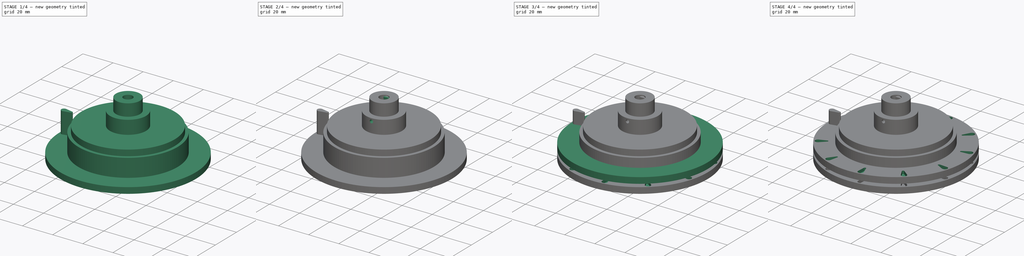
[diagram: build sequence overview — one tinted view per stage of 4, left to right]
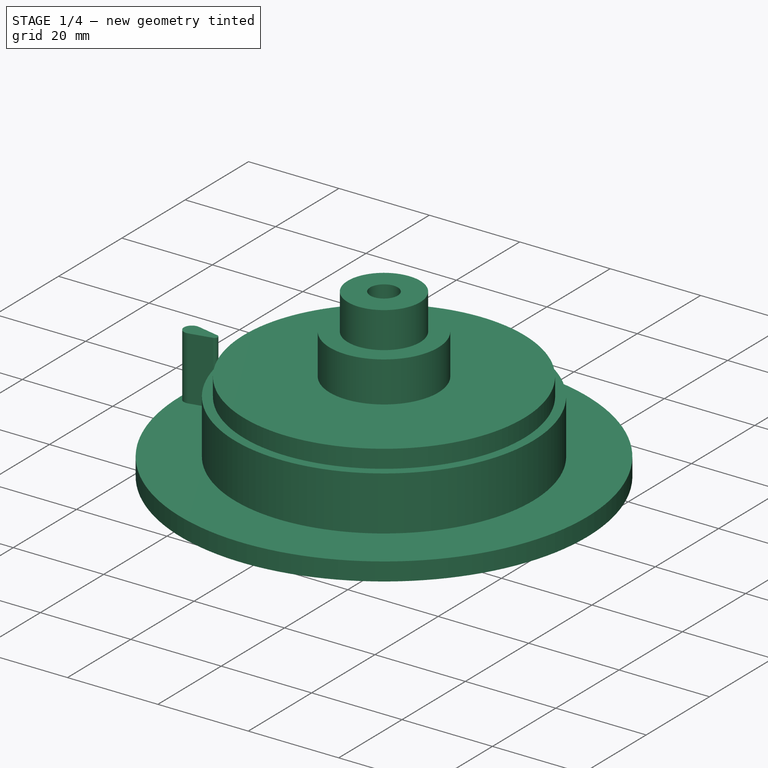
[diagram: stage 1 of 4 — iso view after this stage's code; geometry added in this stage tinted green]
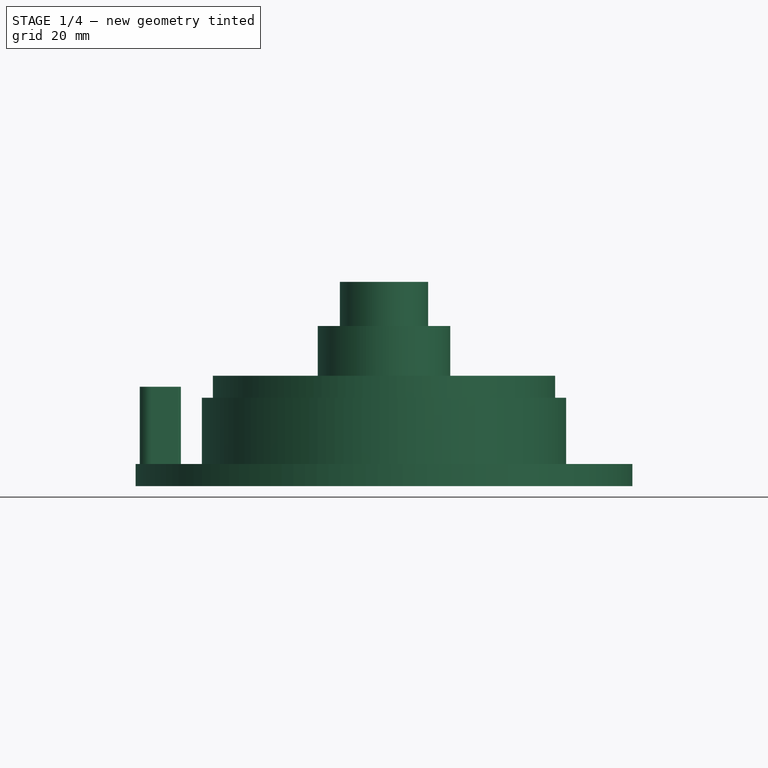
[diagram: stage 1 of 4 — front view after this stage's code; geometry added in this stage tinted green]
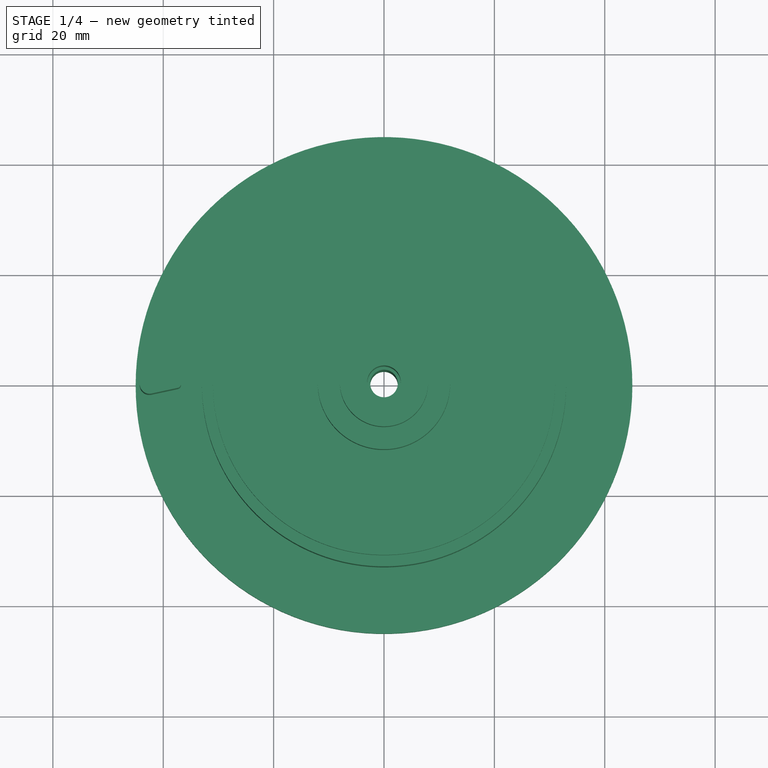
[diagram: stage 1 of 4 — top view after this stage's code; geometry added in this stage tinted green]
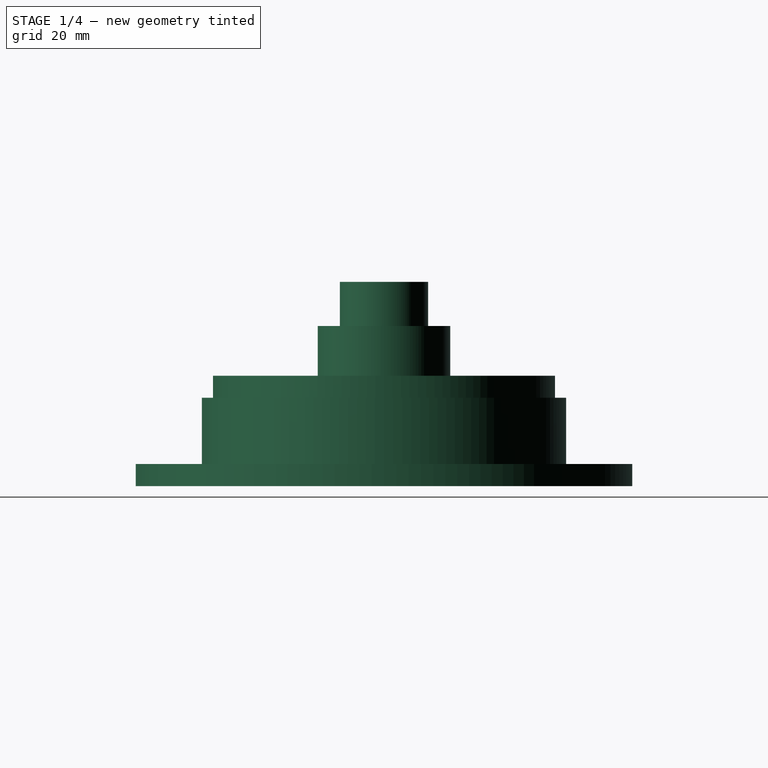
[diagram: stage 1 of 4 — right view after this stage's code; geometry added in this stage tinted green]
FCSTD DOCUMENT  (FreeCAD 0.20R27319 (Git))
Label: sprocket
License: All rights reserved
LicenseURL: http://en.wikipedia.org/wiki/All_rights_reserved
objects: Sketcher::SketchObject×7, PartDesign::Pad×3, PartDesign::Pocket×3, PartDesign::Body×3, App::MeasureDistance×2, PartDesign::PolarPattern×2, PartDesign::Revolution×1
note: 26 computed .brp shape members not serialized (recipe doc carries the construction recipe); baked Part::Feature solids carry a one-line shape summary decoded from their .brp

FEATURE [Sketcher::SketchObject] Sketch006
  FullyConstrained = true
  MapMode = 5
  Placement = pos=(0,0,0) rot=(1,0,0;1.5708rad)
  Support = -> [XZ_Plane005]
  sketch-geometry (17):
    g0: LineSegment StartX=-8 StartY=27 StartZ=0 EndX=-3.05 EndY=27 EndZ=0
    g1: GeomPoint X=8 Y=27 Z=0
    g2: GeomPoint X=3.05 Y=14 Z=0
    g3: LineSegment StartX=-2.5 StartY=-10 StartZ=0 EndX=-2.5 EndY=14 EndZ=0
    g4: LineSegment StartX=-2.5 StartY=14 StartZ=0 EndX=-3.05 EndY=14 EndZ=0
    g5: LineSegment StartX=-3.05 StartY=14 StartZ=0 EndX=-3.05 EndY=27 EndZ=0
    g6: LineSegment StartX=-8 StartY=19 StartZ=0 EndX=-12 EndY=19 EndZ=0
    g7: LineSegment StartX=-45 StartY=-10 StartZ=0 EndX=-2.5 EndY=-10 EndZ=0
    g8: LineSegment StartX=-8 StartY=19 StartZ=0 EndX=-8 EndY=27 EndZ=0
    g9: LineSegment StartX=-45 StartY=-6 StartZ=0 EndX=-45 EndY=-10 EndZ=0
    g10: LineSegment StartX=-33 StartY=-6 StartZ=0 EndX=-45 EndY=-6 EndZ=0
    g11: LineSegment StartX=-33 StartY=6 StartZ=0 EndX=-33 EndY=-6 EndZ=0
    g12: LineSegment StartX=-31 StartY=6 StartZ=0 EndX=-33 EndY=6 EndZ=0
    g13: LineSegment StartX=-31 StartY=10 StartZ=0 EndX=-31 EndY=6 EndZ=0
    g14: LineSegment StartX=-12 StartY=19 StartZ=0 EndX=-12 EndY=10 EndZ=0
    g15: LineSegment StartX=-12 StartY=10 StartZ=0 EndX=-31 EndY=10 EndZ=0
    g16: GeomPoint X=31 Y=6 Z=0
  constraints (45):
    c: Coincident(g8,g0)
    c: Horizontal(g0)
    c: Symmetric(g8,g1,g-2)
    c: DistanceX(g8,g1) = 16
    c: Vertical(g3)
    c: Coincident(g3,g4)
    c: Horizontal(g4)
    c: Coincident(g4,g5)
    c: Coincident(g5,g0)
    c: Vertical(g5)
    c: Symmetric(g2,g4,g-2)
    c: DistanceX(g4,g2) = 6.1
    c: DistanceY(g5,g5) = 13
    c: Coincident(g6,g14)
    c: Coincident(g9,g7)
    c: Horizontal(g6)
    c: Horizontal(g7)
    c: Coincident(g8,g6)
    c: DistanceY(g8,g8) = 8
    c: DistanceX(g3) = -2.5
    c: Coincident(g7,g3)
    c: Vertical(g8)
    c: Coincident(g10,g9)
    c: Vertical(g9)
    c: Coincident(g11,g10)
    c: Coincident(g12,g11)
    c: Horizontal(g10)
    c: Coincident(g13,g12)
    c: Horizontal(g12)
    c: DistanceY(g9,g9) = 4
    c: Coincident(g15,g13)
    c: Vertical(g13)
    c: Coincident(g14,g15)
    c: Vertical(g14)
    c: Horizontal(g15)
    c: Equal(g9,g13)
    c: DistanceY(g14,g14) = 9
    c: DistanceX(g12,g12) = 2
    c: DistanceY(g11,g11) = 12
    c: Symmetric(g16,g12,g-2)
    c: DistanceX(g12,g16) = 62  'base_diam'
    c: DistanceX(g10,g10) = 12
    c: Symmetric(g10,g11,g-1)
    c: DistanceY(g0) = 27  'height'
    c: DistanceX(g6,g6) = 4
FEATURE [PartDesign::Revolution] Revolution001
  Angle = 360
  Axis = (0,-2e-16,1)
  Base = (0,0,0)
  Placement = pos=(0,0,0) rot=(1,0,0;1.5708rad)
  Profile = -> Sketch006
  ReferenceAxis = -> Sketch006 [V_Axis]
FEATURE [PartDesign::Body] Body005  label="wheel-one_rim"
  Group = -> [Sketch006,Revolution001,Sketch013,Sketch,Pad,Pocket003,Sketch014,Pocket004,PolarPattern]
  Origin = -> Origin005
  Tip = -> PolarPattern
FEATURE [Sketcher::SketchObject] Sketch017
  FullyConstrained = true
  MapMode = 5
  Support = -> [XY_Plane006]
  expr: Constraints[1] = Sketch014.Constraints[1]
  expr: Constraints[2] = Sketch014.Constraints[2]
  expr: Constraints[4] = Sketch014.Constraints[4]
  expr: Constraints[9] = Sketch014.Constraints[9]
  sketch-geometry (4):
    g0: ArcOfCircle CenterX=-42.5 CenterY=0 CenterZ=0 NormalX=0 NormalY=0 NormalZ=1 AngleXU=0 Radius=1.75 StartAngle=1.35922 EndAngle=4.92396
    g1: ArcOfCircle CenterX=-37.5 CenterY=0 CenterZ=0 NormalX=0 NormalY=0 NormalZ=1 AngleXU=0 Radius=0.7 StartAngle=4.92396 EndAngle=7.64241
    g2: LineSegment StartX=-37.353 StartY=0.684391 StartZ=0 EndX=-42.1325 EndY=1.71098 EndZ=0
    g3: LineSegment StartX=-37.353 StartY=-0.684391 StartZ=0 EndX=-42.1325 EndY=-1.71098 EndZ=0
  constraints (10):
    c: PointOnObject(g0,g-1)
    c: Radius(g0) = 1.75
    c: DistanceX(g0) = -42.5
    c: PointOnObject(g1,g-1)
    c: Radius(g1) = 0.7
    c: Tangent(g3,g0) = 1.5708
    c: Tangent(g3,g1) = 1.5708
    c: Tangent(g2,g1) = -1.5708
    c: Tangent(g2,g0) = -1.5708
    c: DistanceX(g0,g1) = 5
FEATURE [PartDesign::Pad] Pad003
  Direction = (0,0,1)
  Length = 16
  Length2 = 10
  Midplane = true
  Profile = -> Sketch017
  ReferenceAxis = -> Sketch017 [N_Axis]
  Type = 0
FEATURE [PartDesign::Body] Body006  label="tooth"
  Group = -> [Sketch017,Pad003]
  Origin = -> Origin006
  Placement = pos=(-12,0,0) rot=(0,0,1;0rad)
  Tip = -> Pad003
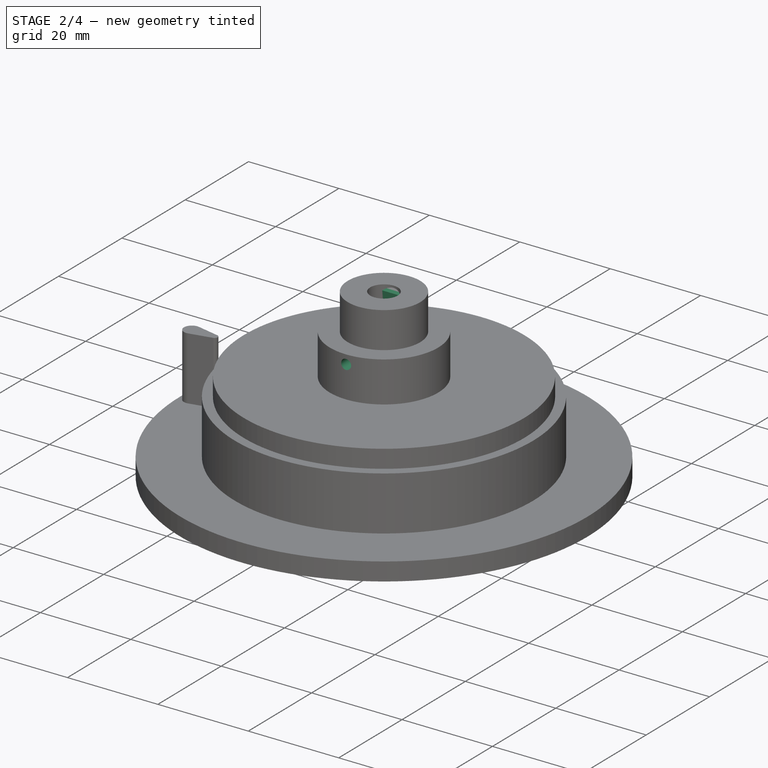
[diagram: stage 2 of 4 — iso view after this stage's code; geometry added in this stage tinted green]
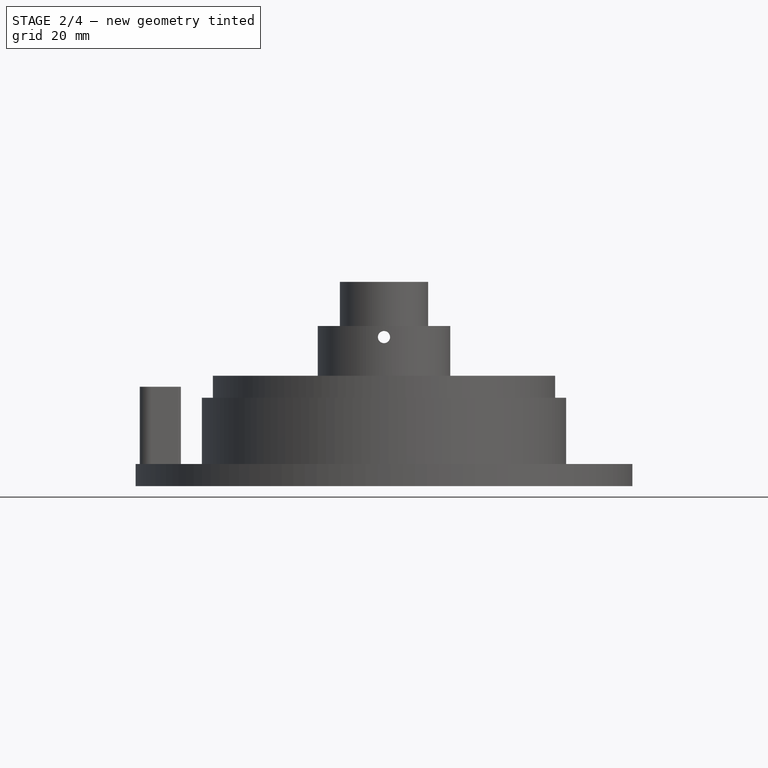
[diagram: stage 2 of 4 — front view after this stage's code; geometry added in this stage tinted green]
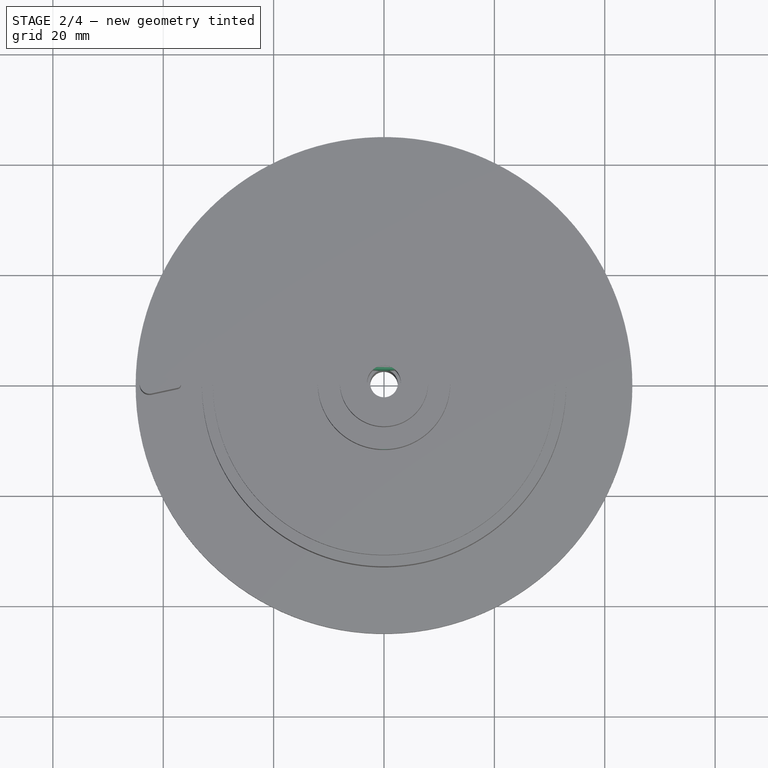
[diagram: stage 2 of 4 — top view after this stage's code; geometry added in this stage tinted green]
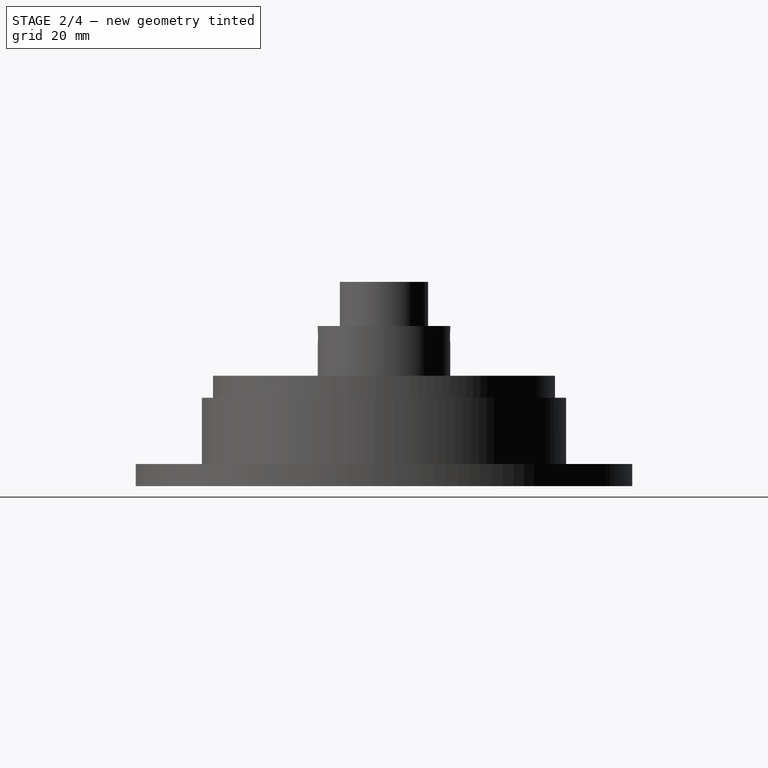
[diagram: stage 2 of 4 — right view after this stage's code; geometry added in this stage tinted green]
FEATURE [Sketcher::SketchObject] Sketch013
  FullyConstrained = true
  MapMode = 5
  Placement = pos=(0,0,0) rot=(1,0,0;1.5708rad)
  Support = -> [XZ_Plane005]
  expr: Constraints[2] = Sketch006.Constraints.height - 10mm
  sketch-geometry (1):
    g0: Circle CenterX=0 CenterY=17 CenterZ=0 NormalX=0 NormalY=0 NormalZ=1 AngleXU=0 Radius=1.1
  constraints (3):
    c: Diameter(g0) = 2.2
    c: PointOnObject(g0,g-2)
    c: DistanceY(g0) = 17
FEATURE [Sketcher::SketchObject] Sketch
  FullyConstrained = true
  MapMode = 5
  Placement = pos=(0,0,0) rot=(0.57735,0.57735,0.57735;2.0944rad)
  Support = -> [YZ_Plane005]
  expr: Constraints[10] = Sketch006.Constraints.height - 1.2mm
  sketch-geometry (4):
    g0: LineSegment StartX=2.3 StartY=14.8 StartZ=0 EndX=2.3 EndY=25.8 EndZ=0
    g1: LineSegment StartX=2.3 StartY=25.8 StartZ=0 EndX=3.3 EndY=26.8 EndZ=0
    g2: LineSegment StartX=3.3 StartY=26.8 StartZ=0 EndX=3.3 EndY=14.8 EndZ=0
    g3: LineSegment StartX=3.3 StartY=14.8 StartZ=0 EndX=2.3 EndY=14.8 EndZ=0
  constraints (12):
    c: Vertical(g0)
    c: Coincident(g0,g1)
    c: Coincident(g1,g2)
    c: Vertical(g2)
    c: Coincident(g2,g3)
    c: Coincident(g3,g0)
    c: Angle(g1) = 0.785398
    c: DistanceX(g0) = 2.3
    c: DistanceX(g3,g3) = 1
    c: Horizontal(g3)
    c: DistanceY(g0) = 25.8
    c: DistanceY(g0,g0) = 11
FEATURE [PartDesign::Pad] Pad
  BaseFeature = -> Revolution001
  Direction = (1,-2e-16,3e-16)
  Length = 6
  Length2 = 10
  Midplane = true
  Placement = pos=(0,0,0) rot=(1,0,0;1.5708rad)
  Profile = -> Sketch
  ReferenceAxis = -> Sketch [N_Axis]
  Type = 0
FEATURE [PartDesign::Pocket] Pocket003
  BaseFeature = -> Pad
  Direction = (0,1,2e-16)
  Length = 5
  Length2 = 100
  Midplane = true
  Placement = pos=(0,0,0) rot=(1,0,0;1.5708rad)
  Profile = -> Sketch013
  Type = 1
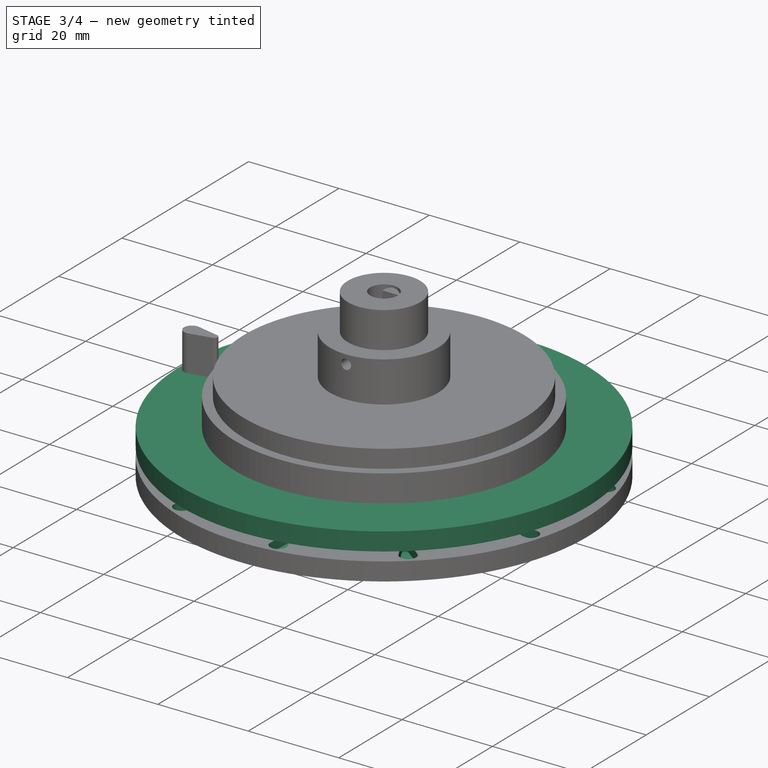
[diagram: stage 3 of 4 — iso view after this stage's code; geometry added in this stage tinted green]
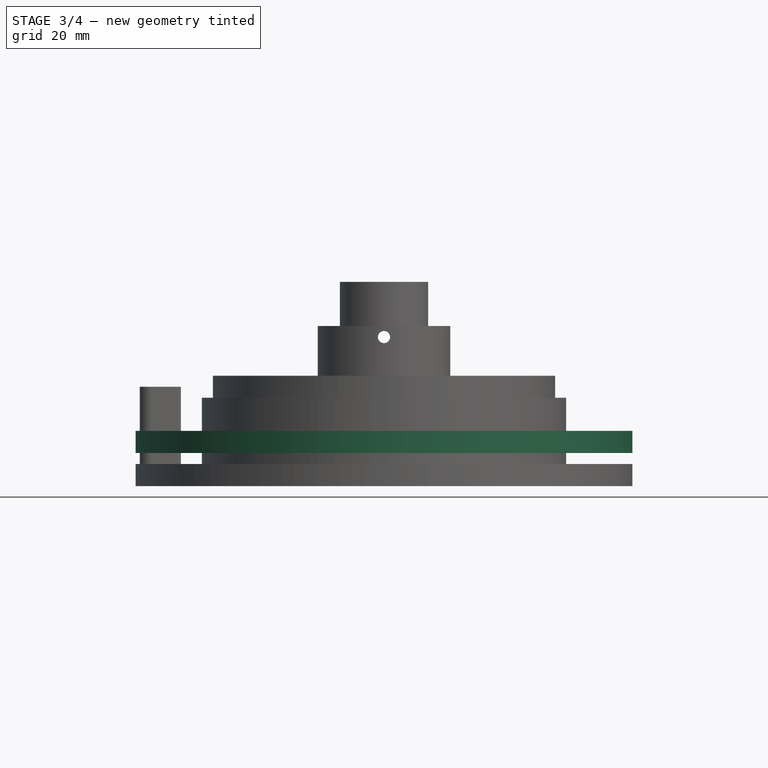
[diagram: stage 3 of 4 — front view after this stage's code; geometry added in this stage tinted green]
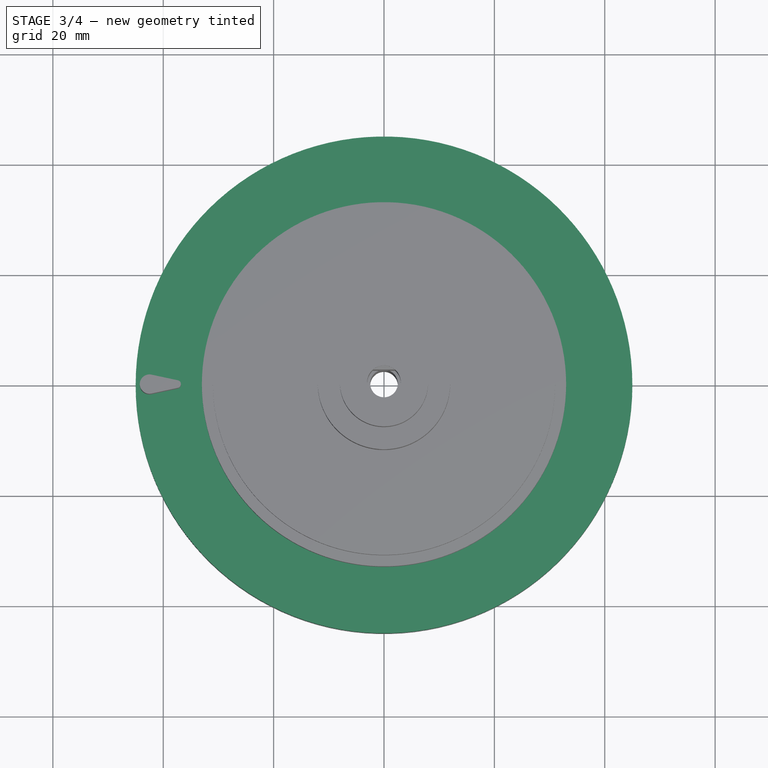
[diagram: stage 3 of 4 — top view after this stage's code; geometry added in this stage tinted green]
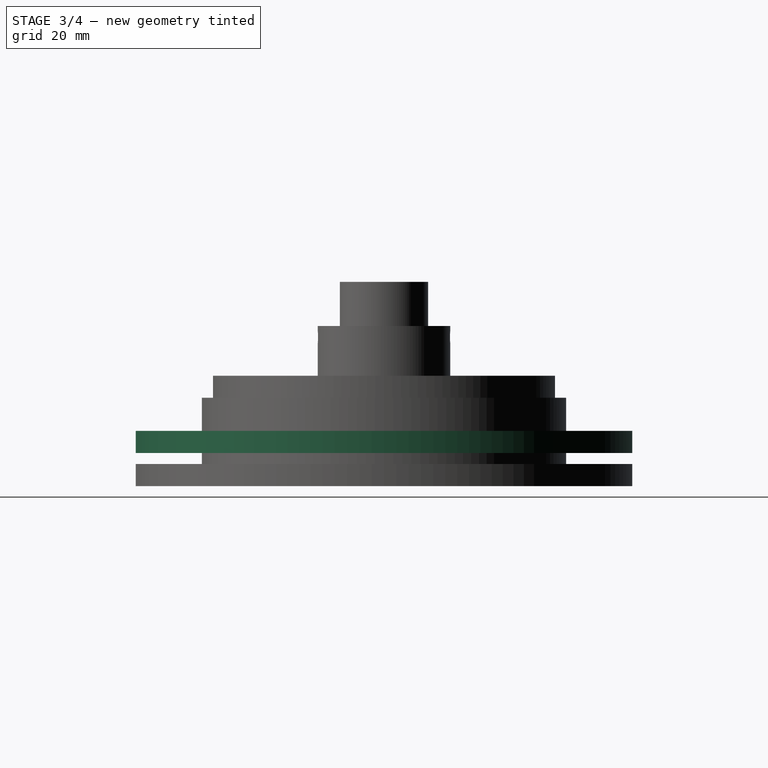
[diagram: stage 3 of 4 — right view after this stage's code; geometry added in this stage tinted green]
FEATURE [Sketcher::SketchObject] Sketch014
  FullyConstrained = true
  MapMode = 5
  Support = -> [XY_Plane005]
  expr: Constraints[2] = -Sketch006.Constraints.base_diam / 2 - 11.5mm
  sketch-geometry (4):
    g0: ArcOfCircle CenterX=-42.5 CenterY=0 CenterZ=0 NormalX=0 NormalY=0 NormalZ=1 AngleXU=0 Radius=1.75 StartAngle=1.35922 EndAngle=4.92396
    g1: ArcOfCircle CenterX=-37.5 CenterY=0 CenterZ=0 NormalX=0 NormalY=0 NormalZ=1 AngleXU=0 Radius=0.7 StartAngle=4.92396 EndAngle=7.64241
    g2: LineSegment StartX=-37.353 StartY=0.684391 StartZ=0 EndX=-42.1325 EndY=1.71098 EndZ=0
    g3: LineSegment StartX=-37.353 StartY=-0.684391 StartZ=0 EndX=-42.1325 EndY=-1.71098 EndZ=0
  constraints (10):
    c: PointOnObject(g0,g-1)
    c: Radius(g0) = 1.75
    c: DistanceX(g0) = -42.5
    c: PointOnObject(g1,g-1)
    c: Radius(g1) = 0.7
    c: Tangent(g3,g0) = 1.5708
    c: Tangent(g3,g1) = 1.5708
    c: Tangent(g2,g1) = -1.5708
    c: Tangent(g2,g0) = -1.5708
    c: DistanceX(g0,g1) = 5
FEATURE [App::MeasureDistance] Distance  label="Distance: 27,944 mm"
  Distance = 27.9439
  P1 = (-35.1805,24.8935,7)
  P2 = (-43.1779,-1.88161,7)
FEATURE [App::MeasureDistance] Distance001  label="Distance: 16,806 mm"
  Distance = 16.8057
  P1 = (-32.9851,0.94361,6)
  P2 = (-28.2428,17.0664,6)
FEATURE [Sketcher::SketchObject] Sketch015
  FullyConstrained = false
  MapMode = 5
  Support = -> [XY_Plane]
  expr: Constraints[2] = Sketch006.Constraints.base_diam
  expr: Constraints[3] = Sketch006.Constraints.base_diam + 2 * (12mm + 2mm)
  sketch-geometry (2):
    g0: Circle CenterX=0 CenterY=0 CenterZ=0 NormalX=0 NormalY=0 NormalZ=1 AngleXU=0 Radius=45
    g1: Circle CenterX=0.883837 CenterY=0 CenterZ=0 NormalX=0 NormalY=0 NormalZ=1 AngleXU=0 Radius=31
  constraints (4):
    c: Coincident(g0,g-1)
    c: PointOnObject(g1,g-1)
    c: Diameter(g1) = 62
    c: Diameter(g0) = 90
FEATURE [PartDesign::Pad] Pad002
  Direction = (0,0,1)
  Length = 4
  Length2 = 10
  Profile = -> Sketch015
  ReferenceAxis = -> Sketch015 [N_Axis]
  Reversed = true
  Type = 0
FEATURE [PartDesign::Body] Body  label="second_rim"
  Group = -> [Sketch015,Pad002,Sketch016,Pocket,PolarPattern001]
  Origin = -> Origin
  Placement = pos=(0,0,20) rot=(0,0,1;0rad)
  Tip = -> PolarPattern001
FEATURE [PartDesign::Pocket] Pocket004  label="tooth "
  BaseFeature = -> Pocket003
  Direction = (0,0,-1)
  Length = 8
  Length2 = 5
  Placement = pos=(0,0,0) rot=(1,0,0;1.5708rad)
  Profile = -> Sketch014
  ReferenceAxis = -> Sketch014 [N_Axis]
  Type = 0
FEATURE [PartDesign::PolarPattern] PolarPattern
  Angle = 360
  Axis = -> Sketch014 [N_Axis]
  BaseFeature = -> Pocket004
  Occurrences = 11
  Originals = -> [Pocket004]
  Overlap = 0
  Placement = pos=(0,0,0) rot=(1,0,0;1.5708rad)
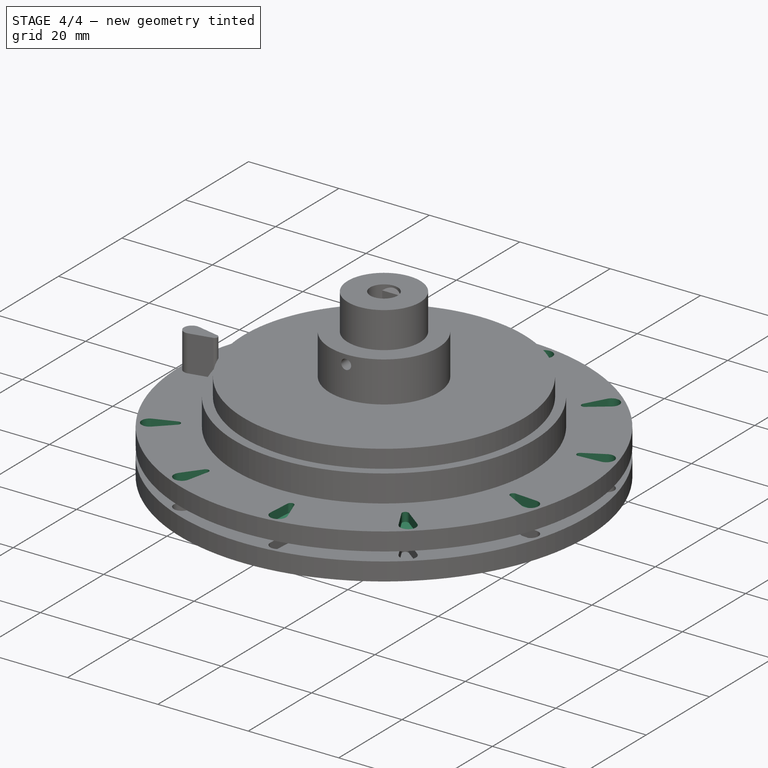
[diagram: stage 4 of 4 — iso view after this stage's code; geometry added in this stage tinted green]
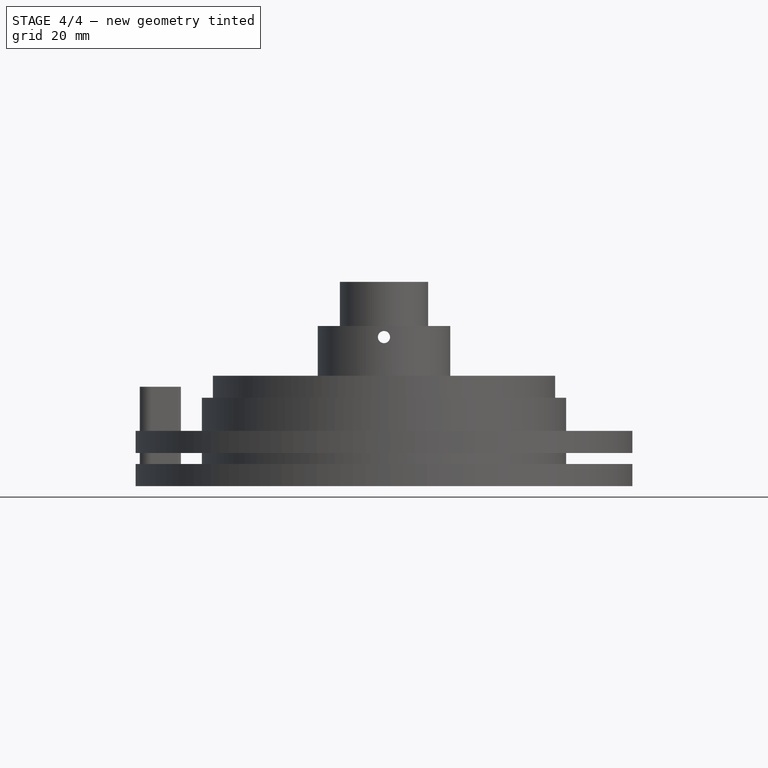
[diagram: stage 4 of 4 — front view after this stage's code; geometry added in this stage tinted green]
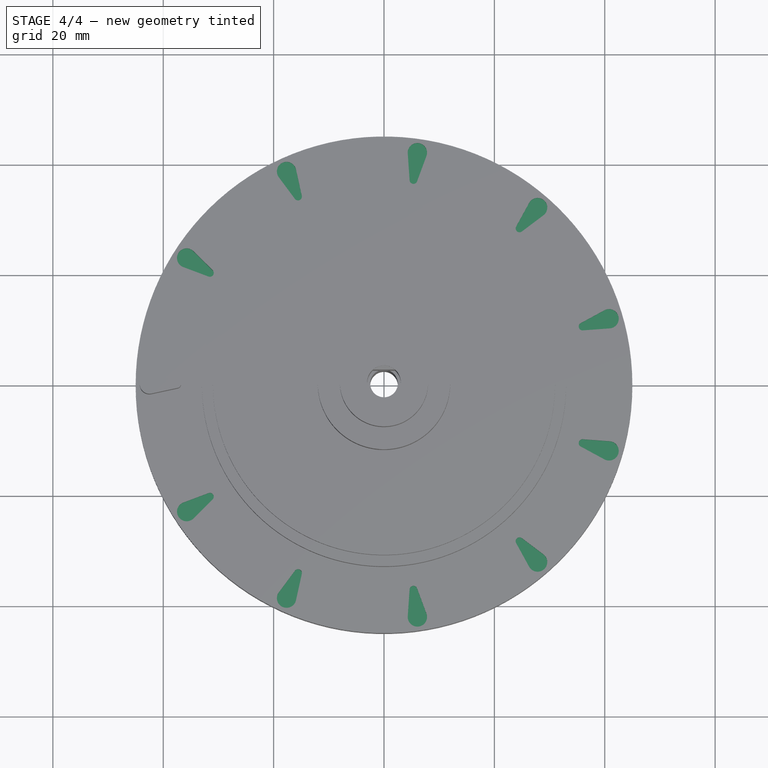
[diagram: stage 4 of 4 — top view after this stage's code; geometry added in this stage tinted green]
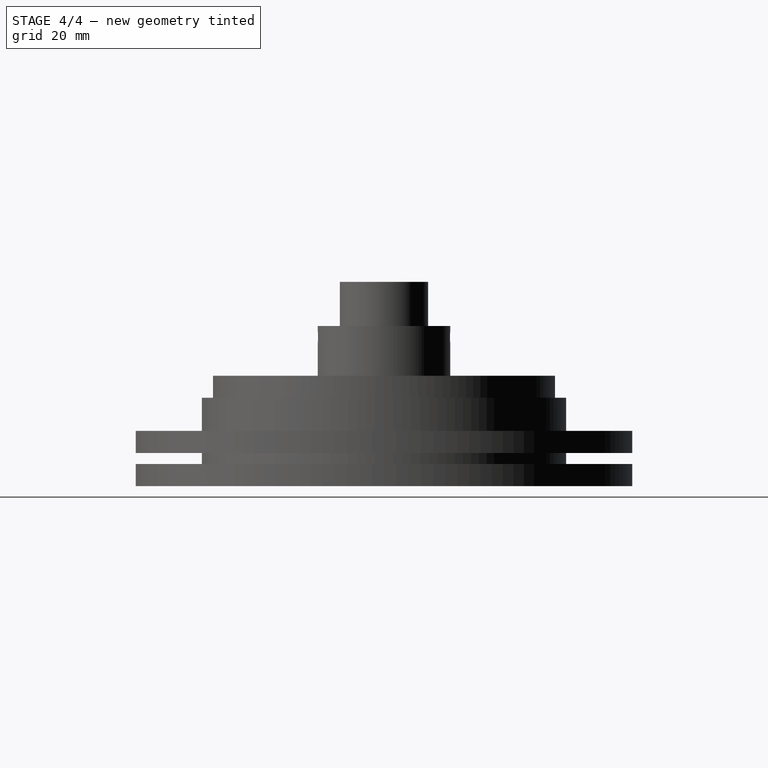
[diagram: stage 4 of 4 — right view after this stage's code; geometry added in this stage tinted green]
FEATURE [Sketcher::SketchObject] Sketch016
  FullyConstrained = true
  MapMode = 5
  Support = -> [XY_Plane]
  expr: Constraints[1] = Sketch014.Constraints[1]
  expr: Constraints[2] = Sketch014.Constraints[2]
  expr: Constraints[4] = Sketch014.Constraints[4]
  expr: Constraints[9] = Sketch014.Constraints[9]
  sketch-geometry (4):
    g0: ArcOfCircle CenterX=-42.5 CenterY=0 CenterZ=0 NormalX=0 NormalY=0 NormalZ=1 AngleXU=0 Radius=1.75 StartAngle=1.35922 EndAngle=4.92396
    g1: ArcOfCircle CenterX=-37.5 CenterY=0 CenterZ=0 NormalX=0 NormalY=0 NormalZ=1 AngleXU=0 Radius=0.7 StartAngle=4.92396 EndAngle=7.64241
    g2: LineSegment StartX=-37.353 StartY=0.684391 StartZ=0 EndX=-42.1325 EndY=1.71098 EndZ=0
    g3: LineSegment StartX=-37.353 StartY=-0.684391 StartZ=0 EndX=-42.1325 EndY=-1.71098 EndZ=0
  constraints (10):
    c: PointOnObject(g0,g-1)
    c: Radius(g0) = 1.75
    c: DistanceX(g0) = -42.5
    c: PointOnObject(g1,g-1)
    c: Radius(g1) = 0.7
    c: Tangent(g3,g0) = 1.5708
    c: Tangent(g3,g1) = 1.5708
    c: Tangent(g2,g1) = -1.5708
    c: Tangent(g2,g0) = -1.5708
    c: DistanceX(g0,g1) = 5
FEATURE [PartDesign::Pocket] Pocket
  BaseFeature = -> Pad002
  Direction = (0,0,-1)
  Length = 2
  Length2 = 5
  Profile = -> Sketch016
  ReferenceAxis = -> Sketch016 [N_Axis]
  Type = 0
FEATURE [PartDesign::PolarPattern] PolarPattern001
  Angle = 360
  Axis = -> Sketch016 [N_Axis]
  BaseFeature = -> Pocket
  Occurrences = 11
  Originals = -> [Pocket]
  Overlap = 0
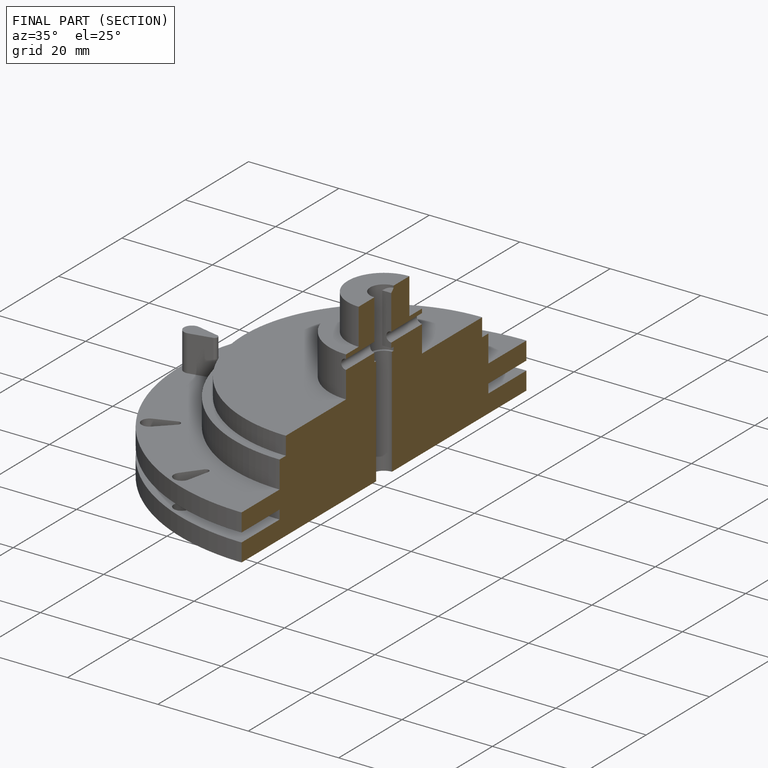
[diagram: finished part — half-section view (interior)]
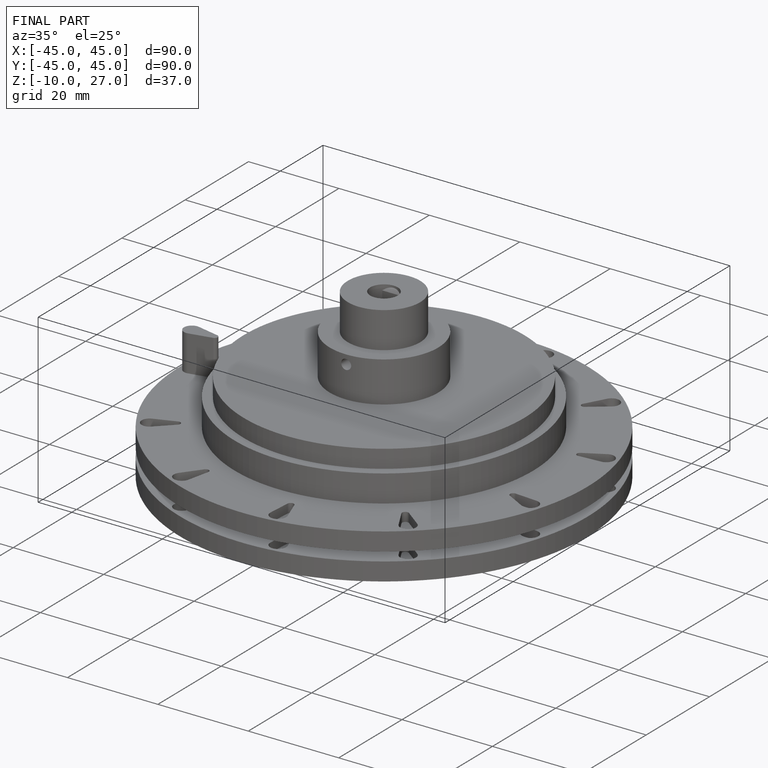
[diagram: finished part — iso view with bounding-box wireframe]
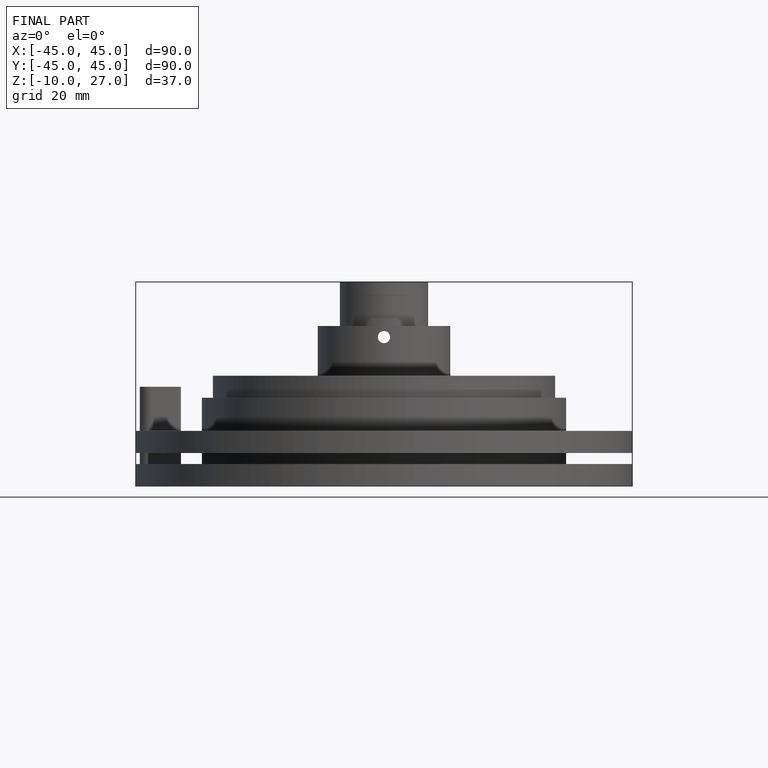
[diagram: finished part — front view with bounding-box wireframe]
